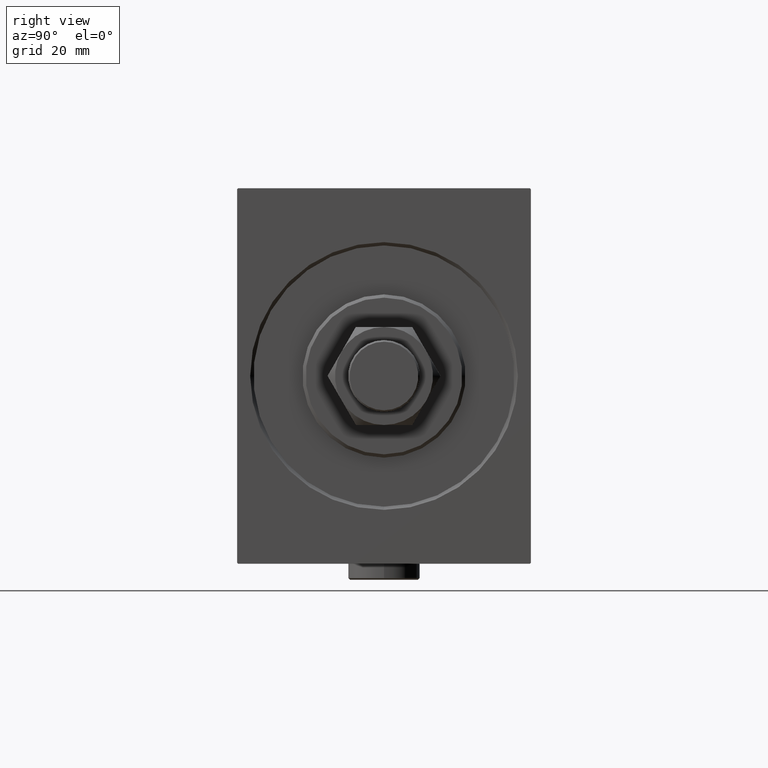
[diagram: clean part render]
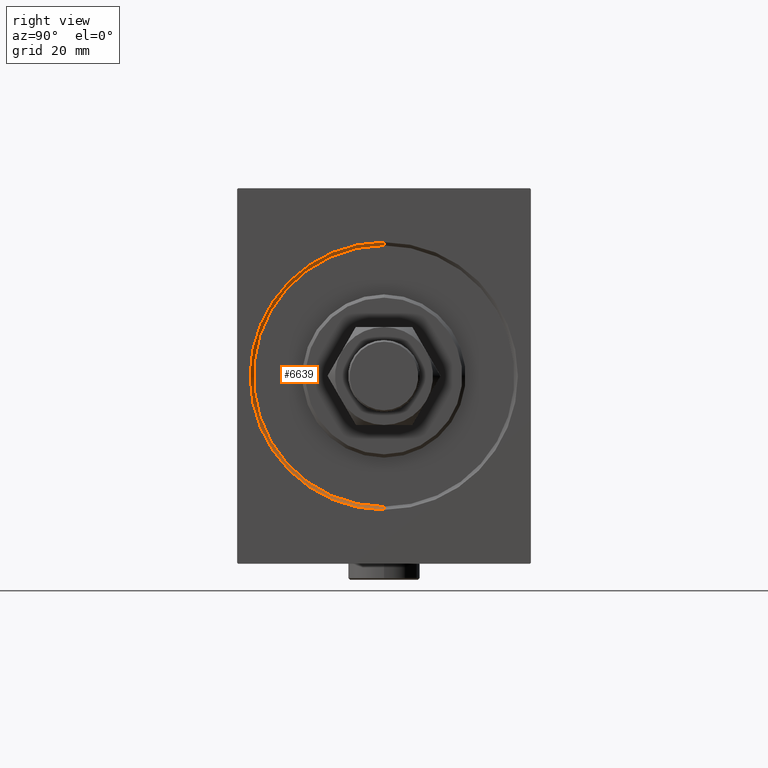
[diagram: same view with one face highlighted and labeled with its STEP entity id]
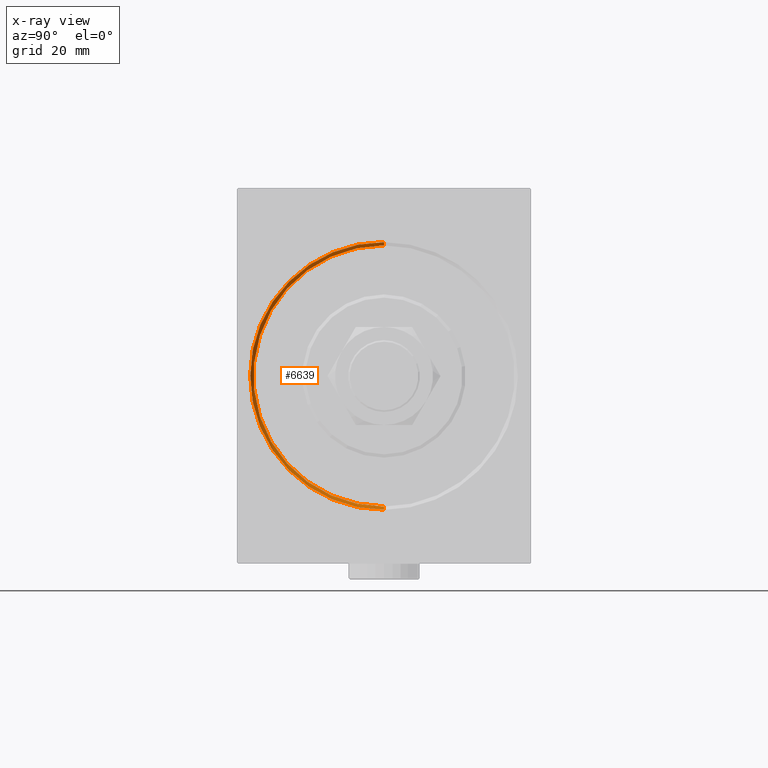
[diagram: x-ray of the same camera — body ghosted, the highlighted face saturated]
A machine part, right view. The second image highlights one B-rep face of the part: STEP entity #6639.
The next image is the same camera in x-ray: the body ghosted, the highlighted face saturated — about 0% of this face is hidden behind the body in this view.
In plain terms, the highlighted conical surface has half-angle 45 deg.
Its self-contained STEP definition (entity closure, byte-faithful):
#588 = CARTESIAN_POINT ( 'NONE',  ( 1.000000000000007772, 0.000000000000000000, 0.000000000000000000 ) ) ;
#5639 = ORIENTED_EDGE ( 'NONE', *, *, #27907, .F. ) ;
#6639 = ADVANCED_FACE ( 'NONE', ( #32291 ), #7819, .F. ) ;
#7819 = CONICAL_SURFACE ( 'NONE', #37351, 40.00000000000000000, 0.7853981633974482790 ) ;
#8163 = VECTOR ( 'NONE', #26376, 1000.000000000000114 ) ;
#8206 = DIRECTION ( 'NONE',  ( -1.000000000000000000, 0.000000000000000000, 0.000000000000000000 ) ) ;
#8550 = CARTESIAN_POINT ( 'NONE',  ( 1.000000000000007772, 0.000000000000000000, 40.00000000000000000 ) ) ;
#8835 = LINE ( 'NONE', #27337, #20653 ) ;
#9369 = CARTESIAN_POINT ( 'NONE',  ( 1.000000000000007772, 0.000000000000000000, 40.00000000000000000 ) ) ;
#9740 = CARTESIAN_POINT ( 'NONE',  ( 1.000000000000007772, 0.000000000000000000, 0.000000000000000000 ) ) ;
#10328 = CARTESIAN_POINT ( 'NONE',  ( 0.000000000000000000, 0.000000000000000000, 41.00000000000000711 ) ) ;
#10930 = VERTEX_POINT ( 'NONE', #38148 ) ;
#12986 = DIRECTION ( 'NONE',  ( 0.000000000000000000, 0.000000000000000000, -1.000000000000000000 ) ) ;
#13449 = CIRCLE ( 'NONE', #39325, 40.00000000000000000 ) ;
#15210 = DIRECTION ( 'NONE',  ( 0.000000000000000000, 0.000000000000000000, -1.000000000000000000 ) ) ;
#15663 = CARTESIAN_POINT ( 'NONE',  ( 0.000000000000000000, 0.000000000000000000, 0.000000000000000000 ) ) ;
#16475 = DIRECTION ( 'NONE',  ( -0.7071067811865474617, 8.659560562354932858E-17, -0.7071067811865474617 ) ) ;
#18411 = EDGE_CURVE ( 'NONE', #10930, #19760, #37572, .T. ) ;
#18469 = DIRECTION ( 'NONE',  ( 1.000000000000000000, 0.000000000000000000, -0.000000000000000000 ) ) ;
#19760 = VERTEX_POINT ( 'NONE', #10328 ) ;
#20653 = VECTOR ( 'NONE', #16475, 1000.000000000000114 ) ;
#21209 = ORIENTED_EDGE ( 'NONE', *, *, #24945, .F. ) ;
#23126 = EDGE_CURVE ( 'NONE', #24607, #19760, #40250, .T. ) ;
#24607 = VERTEX_POINT ( 'NONE', #9369 ) ;
#24945 = EDGE_CURVE ( 'NONE', #24607, #31758, #13449, .T. ) ;
#26376 = DIRECTION ( 'NONE',  ( -0.7071067811865474617, 0.000000000000000000, 0.7071067811865474617 ) ) ;
#27337 = CARTESIAN_POINT ( 'NONE',  ( 1.000000000000007772, 4.898587196589413026E-15, -40.00000000000000000 ) ) ;
#27907 = EDGE_CURVE ( 'NONE', #31758, #10930, #8835, .T. ) ;
#28832 = DIRECTION ( 'NONE',  ( 0.000000000000000000, 0.000000000000000000, 1.000000000000000000 ) ) ;
#29160 = ORIENTED_EDGE ( 'NONE', *, *, #18411, .F. ) ;
#29759 = EDGE_LOOP ( 'NONE', ( #5639, #21209, #38803, #29160 ) ) ;
#31758 = VERTEX_POINT ( 'NONE', #38960 ) ;
#32291 = FACE_OUTER_BOUND ( 'NONE', #29759, .T. ) ;
#37351 = AXIS2_PLACEMENT_3D ( 'NONE', #588, #8206, #28832 ) ;
#37572 = CIRCLE ( 'NONE', #38294, 41.00000000000000711 ) ;
#37724 = DIRECTION ( 'NONE',  ( -1.000000000000000000, 0.000000000000000000, 0.000000000000000000 ) ) ;
#38148 = CARTESIAN_POINT ( 'NONE',  ( 0.000000000000000000, 5.021051876504148963E-15, -41.00000000000000711 ) ) ;
#38294 = AXIS2_PLACEMENT_3D ( 'NONE', #15663, #18469, #15210 ) ;
#38803 = ORIENTED_EDGE ( 'NONE', *, *, #23126, .T. ) ;
#38960 = CARTESIAN_POINT ( 'NONE',  ( 1.000000000000007772, 4.898587196589413026E-15, -40.00000000000000000 ) ) ;
#39325 = AXIS2_PLACEMENT_3D ( 'NONE', #9740, #37724, #12986 ) ;
#40250 = LINE ( 'NONE', #8550, #8163 ) ;